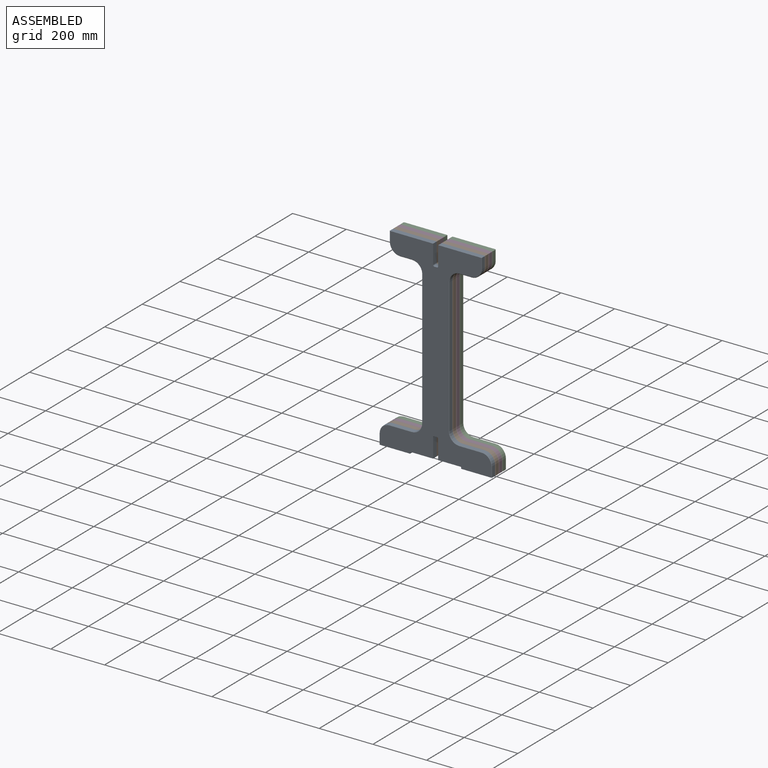
[diagram: assembled view]
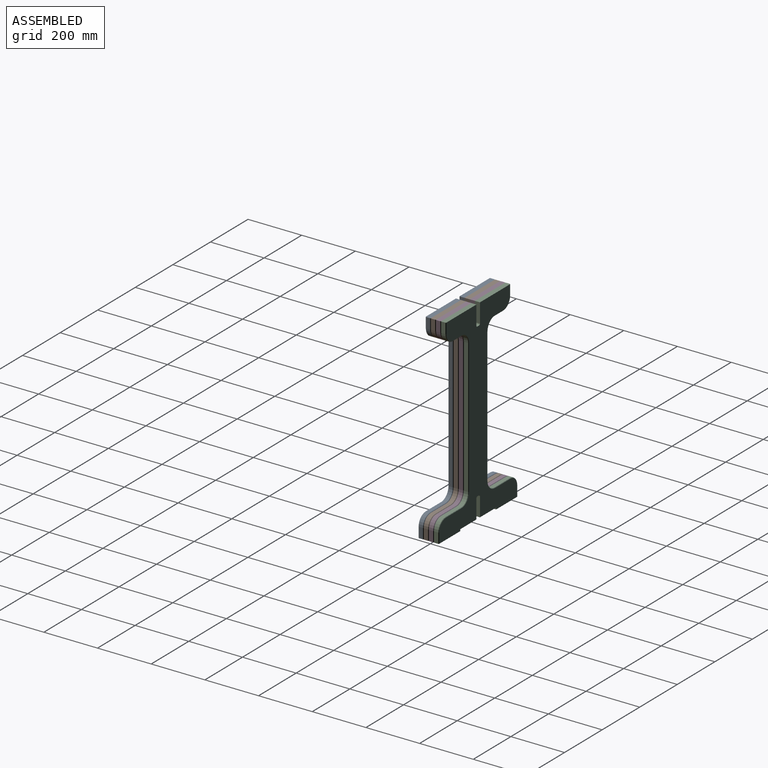
[diagram: assembled view, second angle]
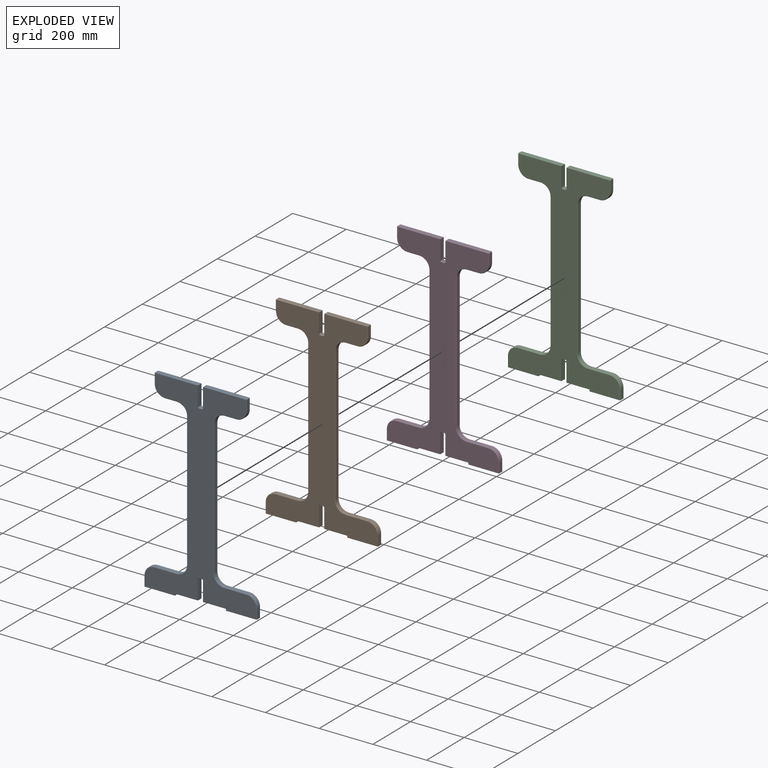
[diagram: exploded view]
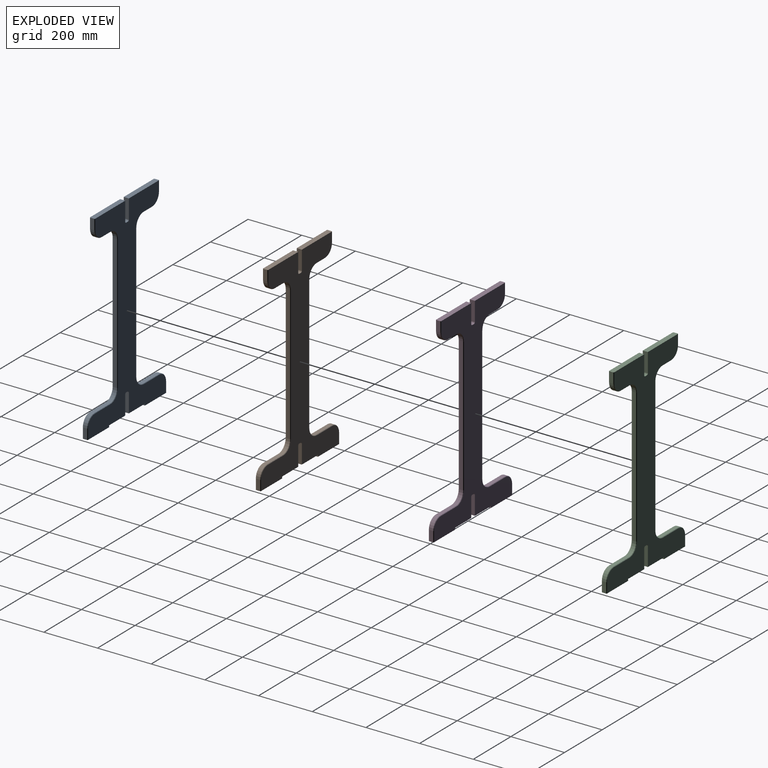
[diagram: exploded view, second angle]
ASSEMBLY  parts=4 mates=3
PART A: 74 faces, bbox 419.1x19.1x730.3 mm
  f0: plane 71.12x19.05mm, normal (1,0,0), area 1354.8mm2, adj f1,f24,f25,f35
  f1: plane 161.93x19.05mm, normal (0,0,1), area 3082.2mm2, adj f0,f2,f24,f25,f64,f73
  f2: plane 38.1x15.88mm, normal (-1,0,0), area 604.8mm2, adj f1,f26,f64,f73
  f3: plane 44.45x15.88mm, normal (0,0,-1), area 705.6mm2, adj f26,f27,f62,f71
  f4: plane 501.65x15.88mm, normal (-1,0,0), area 7963.7mm2, adj f27,f28,f60,f69
  f5: plane 82.55x15.88mm, normal (0,0,1), area 1310.5mm2, adj f28,f29,f58,f67
  f6: plane 38.1x15.88mm, normal (-1,0,0), area 604.8mm2, adj f7,f29,f56,f65
  f7: plane 114.3x19.05mm, normal (0,0,-1), area 2174.9mm2, adj f6,f8,f24,f25,f56,f65
  f8: plane 19.05x6.35mm, normal (1,0,0), area 121mm2, adj f7,f9,f24,f25
  f9: plane 85.73x19.05mm, normal (0,0,-1), area 1633.1mm2, adj f8,f10,f24,f25
  f10: plane 71.12x19.05mm, normal (1,0,0), area 1354.8mm2, adj f9,f24,f25,f36
  f11: plane 19.05x8.89mm, normal (0,0,-1), area 169.4mm2, adj f24,f25,f36,f37
  f12: plane 71.12x19.05mm, normal (-1,0,0), area 1354.8mm2, adj f13,f24,f25,f37
  f13: plane 85.73x19.05mm, normal (0,0,-1), area 1633.1mm2, adj f12,f14,f24,f25
  f14: plane 19.05x6.35mm, normal (-1,0,0), area 121mm2, adj f13,f15,f24,f25
  f15: plane 114.3x19.05mm, normal (0,0,-1), area 2174.9mm2, adj f14,f16,f24,f25,f38,f47
  f16: plane 38.1x15.88mm, normal (1,0,0), area 604.8mm2, adj f15,f30,f38,f47
  f17: plane 82.55x15.88mm, normal (0,0,1), area 1310.5mm2, adj f30,f31,f40,f49
  f18: plane 501.65x15.88mm, normal (1,0,0), area 7963.7mm2, adj f31,f32,f42,f51
  f19: plane 44.45x15.88mm, normal (0,0,-1), area 705.6mm2, adj f32,f33,f44,f53
  f20: plane 38.1x15.88mm, normal (1,0,0), area 604.8mm2, adj f21,f33,f46,f55
  f21: plane 161.93x19.05mm, normal (0,0,1), area 3082.2mm2, adj f20,f22,f24,f25,f46,f55
  f22: plane 71.12x19.05mm, normal (-1,0,0), area 1354.8mm2, adj f21,f24,f25,f34
  f23: plane 19.05x8.89mm, normal (0,0,1), area 169.4mm2, adj f24,f25,f34,f35
  f24: plane 730.25x415.93mm, normal (0,-1,0), area 109685.3mm2, adj f0,f1,f7,f8,f9,f10,f11,f12
  f25: plane 730.25x415.93mm, normal (0,1,0), area 109685.3mm2, adj f0,f1,f7,f8,f9,f10,f11,f12
  f26: cylinder r=38.1mm len=38.1mm, axis (0,1,0), area 950.1mm2, adj f2,f3,f63,f72
  f27: cylinder r=38.1mm len=38.1mm, axis (0,-1,0), area 950.1mm2, adj f3,f4,f61,f70
  f28: cylinder r=38.1mm len=38.1mm, axis (0,1,0), area 950.1mm2, adj f4,f5,f59,f68
  f29: cylinder r=38.1mm len=38.1mm, axis (0,1,0), area 950.1mm2, adj f5,f6,f57,f66
  f30: cylinder r=38.1mm len=38.1mm, axis (0,1,0), area 950.1mm2, adj f16,f17,f39,f48
  f31: cylinder r=38.1mm len=38.1mm, axis (0,1,0), area 950.1mm2, adj f17,f18,f41,f50
  f32: cylinder r=38.1mm len=38.1mm, axis (0,-1,0), area 950.1mm2, adj f18,f19,f43,f52
  f33: cylinder r=38.1mm len=38.1mm, axis (0,1,0), area 950.1mm2, adj f19,f20,f45,f54
  f34: cylinder r=5.08mm len=19.05mm, axis (0,-1,0), area 152mm2, adj f22,f23,f24,f25
  f35: cylinder r=5.08mm len=19.05mm, axis (0,-1,0), area 152mm2, adj f0,f23,f24,f25
  f36: cylinder r=5.08mm len=19.05mm, axis (0,-1,0), area 152mm2, adj f10,f11,f24,f25
  f37: cylinder r=5.08mm len=19.05mm, axis (0,-1,0), area 152mm2, adj f11,f12,f24,f25
  f38: plane 38.1x1.59mm, normal (0.71,0.71,0), area 85.5mm2, adj f15,f16,f25,f39
  f39: cone r=36.51mm half-angle=45deg, axis (0,-1,0), area 131.6mm2, adj f25,f30,f38,f40
  f40: plane 82.55x1.59mm, normal (0,0.71,0.71), area 185.3mm2, adj f17,f25,f39,f41
  f41: cone r=39.69mm half-angle=45deg, axis (0,1,0), area 137.2mm2, adj f25,f31,f40,f42
  f42: plane 501.65x1.59mm, normal (0.71,0.71,0), area 1126.2mm2, adj f18,f25,f41,f43
  f43: cone r=39.69mm half-angle=45deg, axis (0,1,0), area 137.2mm2, adj f25,f32,f42,f44
  f44: plane 44.45x1.59mm, normal (0,0.71,-0.71), area 99.8mm2, adj f19,f25,f43,f45
  f45: cone r=36.51mm half-angle=45deg, axis (0,-1,0), area 131.6mm2, adj f25,f33,f44,f46
  f46: plane 38.1x1.59mm, normal (0.71,0.71,0), area 85.5mm2, adj f20,f21,f25,f45
  f47: plane 38.1x1.59mm, normal (0.71,-0.71,0), area 85.5mm2, adj f15,f16,f24,f48
  f48: cone r=36.51mm half-angle=45deg, axis (0,1,0), area 131.6mm2, adj f24,f30,f47,f49
  f49: plane 82.55x1.59mm, normal (0,-0.71,0.71), area 185.3mm2, adj f17,f24,f48,f50
  f50: cone r=39.69mm half-angle=45deg, axis (0,-1,0), area 137.2mm2, adj f24,f31,f49,f51
  f51: plane 501.65x1.59mm, normal (0.71,-0.71,0), area 1126.2mm2, adj f18,f24,f50,f52
  f52: cone r=39.69mm half-angle=45deg, axis (0,-1,0), area 137.2mm2, adj f24,f32,f51,f53
  f53: plane 44.45x1.59mm, normal (0,-0.71,-0.71), area 99.8mm2, adj f19,f24,f52,f54
  f54: cone r=36.51mm half-angle=45deg, axis (0,1,0), area 131.6mm2, adj f24,f33,f53,f55
  f55: plane 38.1x1.59mm, normal (0.71,-0.71,0), area 85.5mm2, adj f20,f21,f24,f54
  f56: plane 38.1x1.59mm, normal (-0.71,0.71,0), area 85.5mm2, adj f6,f7,f25,f57
  f57: cone r=36.51mm half-angle=45deg, axis (0,-1,0), area 131.6mm2, adj f25,f29,f56,f58
  f58: plane 82.55x1.59mm, normal (0,0.71,0.71), area 185.3mm2, adj f5,f25,f57,f59
  f59: cone r=39.69mm half-angle=45deg, axis (0,1,0), area 137.2mm2, adj f25,f28,f58,f60
  f60: plane 501.65x1.59mm, normal (-0.71,0.71,0), area 1126.2mm2, adj f4,f25,f59,f61
  f61: cone r=39.69mm half-angle=45deg, axis (0,1,0), area 137.2mm2, adj f25,f27,f60,f62
  f62: plane 44.45x1.59mm, normal (0,0.71,-0.71), area 99.8mm2, adj f3,f25,f61,f63
  f63: cone r=36.51mm half-angle=45deg, axis (0,-1,0), area 131.6mm2, adj f25,f26,f62,f64
  f64: plane 38.1x1.59mm, normal (-0.71,0.71,0), area 85.5mm2, adj f1,f2,f25,f63
  f65: plane 38.1x1.59mm, normal (-0.71,-0.71,0), area 85.5mm2, adj f6,f7,f24,f66
  f66: cone r=36.51mm half-angle=45deg, axis (0,1,0), area 131.6mm2, adj f24,f29,f65,f67
  f67: plane 82.55x1.59mm, normal (0,-0.71,0.71), area 185.3mm2, adj f5,f24,f66,f68
  f68: cone r=39.69mm half-angle=45deg, axis (0,-1,0), area 137.2mm2, adj f24,f28,f67,f69
  f69: plane 501.65x1.59mm, normal (-0.71,-0.71,0), area 1126.2mm2, adj f4,f24,f68,f70
  f70: cone r=39.69mm half-angle=45deg, axis (0,-1,0), area 137.2mm2, adj f24,f27,f69,f71
  f71: plane 44.45x1.59mm, normal (0,-0.71,-0.71), area 99.8mm2, adj f3,f24,f70,f72
  f72: cone r=36.51mm half-angle=45deg, axis (0,1,0), area 131.6mm2, adj f24,f26,f71,f73
  f73: plane 38.1x1.59mm, normal (-0.71,-0.71,0), area 85.5mm2, adj f1,f2,f24,f72
PART B: same geometry as A
PART C: same geometry as A
PART D: same geometry as A
PLACE A t=(0,-19.05,0)mm fixed
PLACE B at identity
PLACE C t=(0,38.1,0)mm
PLACE D t=(0,19.05,0)mm
MATE fastened D.f25 <-> C.f24  axis (0,1,0) through (0,19.05,-13.08)mm
MATE fastened A.f25 <-> B.f24  axis (0,1,0) through (0,-19.05,-13.08)mm
MATE fastened B.f25 <-> D.f24  axis (0,1,0) through (0,0,-13.08)mm
